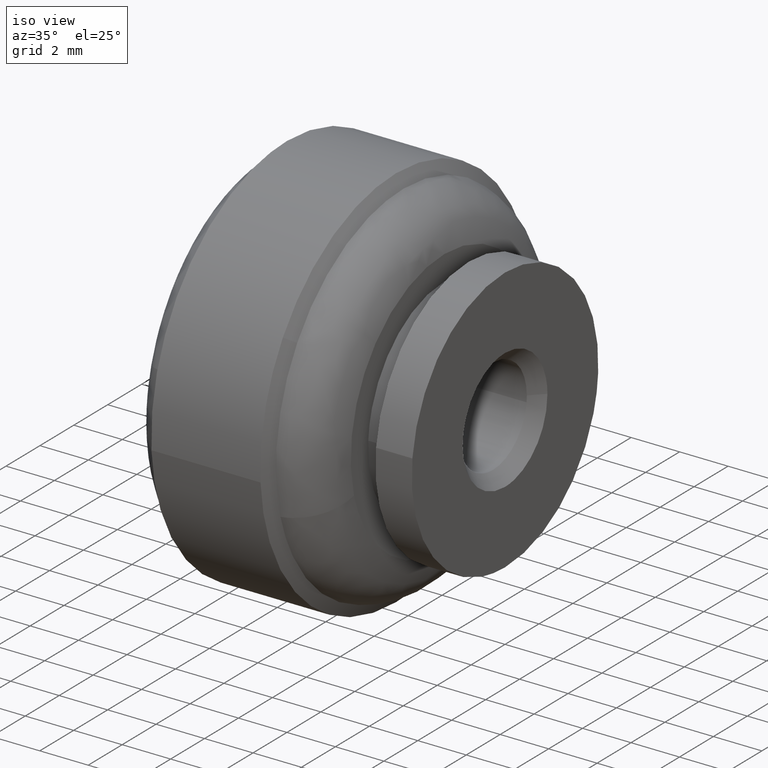
[diagram: clean part render]
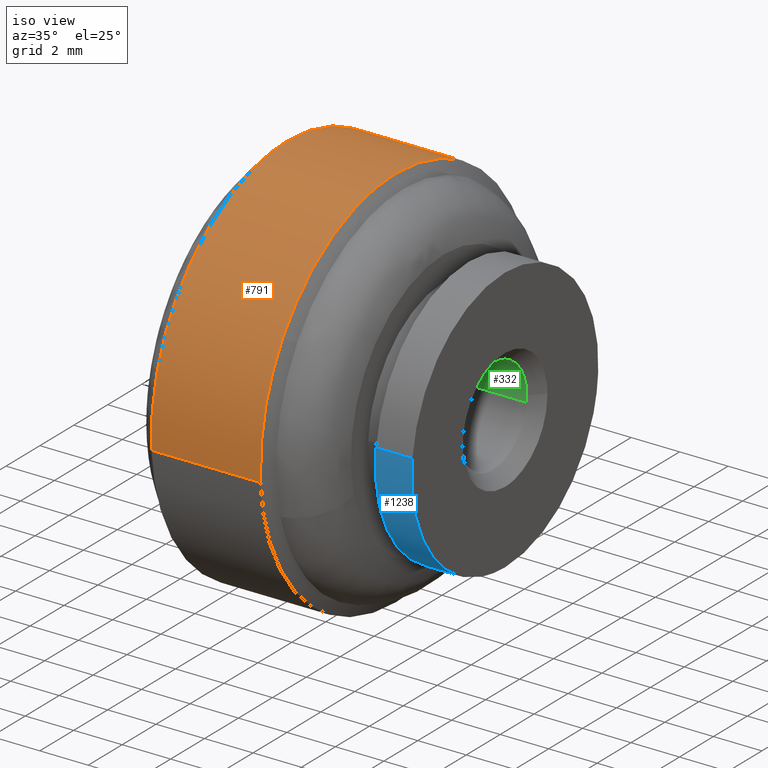
[diagram: same view with three faces highlighted in distinct colors, each labeled with its STEP entity id]
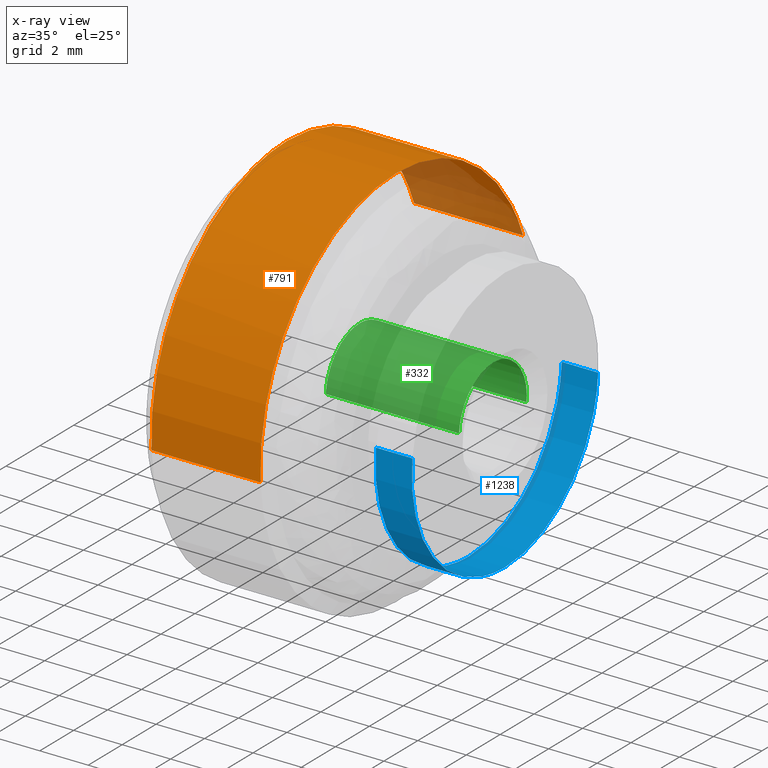
[diagram: x-ray of the same camera — body ghosted, the three highlighted faces saturated]
A machine part, iso view with three faces highlighted in distinct colors.
The next image is the same camera in x-ray (body ghosted, the three faces saturated) — at least one of them is partly hidden behind the body in this view.
Their STEP definitions:

[orange] entity #791 — the highlighted face is a freeform B-spline surface patch.
#490=CARTESIAN_POINT('',(-9.0,-7.985078764886214,-0.488382143945708));
#491=VERTEX_POINT('',#490);
#505=CARTESIAN_POINT('',(-9.0,0.0,8.0));
#506=VERTEX_POINT('',#505);
#507=CARTESIAN_POINT('',(-9.0,-7.985078764886214,-0.488382143945708));
#508=CARTESIAN_POINT('',(-8.999999999999998,-8.0,-0.244419011569009));
#509=CARTESIAN_POINT('',(-9.0,-8.0,0.0));
#510=CARTESIAN_POINT('',(-9.000000000000002,-8.0,8.0));
#511=CARTESIAN_POINT('',(-9.0,0.0,8.0));
#519=(BOUNDED_CURVE()B_SPLINE_CURVE(2,(#507,#508,#509,#510,#511),.UNSPECIFIED.,.F.,.U.)B_SPLINE_CURVE_WITH_KNOTS((3,2,3),(0.739333095617788,0.750000000000000,1.0),.UNSPECIFIED.)CURVE()GEOMETRIC_REPRESENTATION_ITEM()RATIONAL_B_SPLINE_CURVE((0.976072327523139,0.987502944162875,1.0,0.707106781186548,1.0))REPRESENTATION_ITEM(''));
#520=EDGE_CURVE('',#491,#506,#519,.T.);
#522=CARTESIAN_POINT('',(-9.0,7.489148825911312,2.812943274108259));
#523=VERTEX_POINT('',#522);
#524=CARTESIAN_POINT('',(-9.0,0.0,8.0));
#525=CARTESIAN_POINT('',(-9.000000000000004,5.540877589108404,8.0));
#526=CARTESIAN_POINT('',(-9.0,7.489148825911312,2.812943274108260));
#534=(BOUNDED_CURVE()B_SPLINE_CURVE(2,(#524,#525,#526),.UNSPECIFIED.,.F.,.U.)B_SPLINE_CURVE_WITH_KNOTS((3,3),(0.0,0.190284192876237),.UNSPECIFIED.)CURVE()GEOMETRIC_REPRESENTATION_ITEM()RATIONAL_B_SPLINE_CURVE((1.0,0.777068201036636,0.893499581530803))REPRESENTATION_ITEM(''));
#535=EDGE_CURVE('',#506,#523,#534,.T.);
#656=CARTESIAN_POINT('',(-4.499999999999999,7.489148828299452,2.812943267750101));
#657=VERTEX_POINT('',#656);
#690=CARTESIAN_POINT('',(-4.500000000000020,-7.985078769488446,-0.488382068697955));
#691=VERTEX_POINT('',#690);
#705=CARTESIAN_POINT('',(-4.500000000000020,-7.985078769488446,-0.488382068697955));
#706=CARTESIAN_POINT('',(-9.0,-7.985078764886214,-0.488382143945708));
#707=QUASI_UNIFORM_CURVE('',1,(#705,#706),.UNSPECIFIED.,.F.,.U.);
#708=EDGE_CURVE('',#691,#491,#707,.T.);
#714=CARTESIAN_POINT('',(-4.499999999999999,7.489148828299452,2.812943267750101));
#715=CARTESIAN_POINT('',(-9.0,7.489148825911312,2.812943274108259));
#716=QUASI_UNIFORM_CURVE('',1,(#714,#715),.UNSPECIFIED.,.F.,.U.);
#717=EDGE_CURVE('',#657,#523,#716,.T.);
#722=CARTESIAN_POINT('',(-4.387499999999999,-7.985078387374934,-0.488388316278856));
#723=CARTESIAN_POINT('',(-4.387499999999999,-8.473466703653790,7.496690071096078));
#724=CARTESIAN_POINT('',(-4.387499999999999,-0.488388316278856,7.985078387374934));
#725=CARTESIAN_POINT('',(-4.387499999999998,5.410956654424521,8.345897782954735));
#726=CARTESIAN_POINT('',(-4.387499999999999,7.489148630213257,2.812943795132577));
#727=CARTESIAN_POINT('',(-9.115312500000002,-7.985078387374934,-0.488388316278856));
#728=CARTESIAN_POINT('',(-9.115312500000002,-8.473466703653790,7.496690071096078));
#729=CARTESIAN_POINT('',(-9.115312500000002,-0.488388316278856,7.985078387374934));
#730=CARTESIAN_POINT('',(-9.115312500000002,5.410956654424521,8.345897782954735));
#731=CARTESIAN_POINT('',(-9.115312500000000,7.489148630213257,2.812943795132577));
#739=(BOUNDED_SURFACE()B_SPLINE_SURFACE(2,1,((#722,#727),(#723,#728),(#724,#729),(#725,#730),(#726,#731)),.UNSPECIFIED.,.F.,.F.,.U.)B_SPLINE_SURFACE_WITH_KNOTS((3,2,3),(2,2),(0.0,13.254833995939039,23.858701192690269),(0.0,4.727812500000003),.UNSPECIFIED.)GEOMETRIC_REPRESENTATION_ITEM()RATIONAL_B_SPLINE_SURFACE(((1.0,1.0),(0.707106781186548,0.707106781186548),(1.0,1.0),(0.765685424949238,0.765685424949238),(0.906274169979695,0.906274169979695)))REPRESENTATION_ITEM('')SURFACE());
#740=CARTESIAN_POINT('',(-4.500000000000000,0.0,8.0));
#741=VERTEX_POINT('',#740);
#742=CARTESIAN_POINT('',(-4.500000000000000,0.0,8.0));
#743=CARTESIAN_POINT('',(-4.500000000000000,5.540877599158381,8.0));
#744=CARTESIAN_POINT('',(-4.500000000000000,7.489148828299452,2.812943267750101));
#752=(BOUNDED_CURVE()B_SPLINE_CURVE(2,(#742,#743,#744),.UNSPECIFIED.,.F.,.U.)B_SPLINE_CURVE_WITH_KNOTS((3,3),(0.0,0.190284193144431),.UNSPECIFIED.)CURVE()GEOMETRIC_REPRESENTATION_ITEM()RATIONAL_B_SPLINE_CURVE((1.0,0.777068200722428,0.893499581859008))REPRESENTATION_ITEM(''));
#753=EDGE_CURVE('',#741,#657,#752,.T.);
#754=ORIENTED_EDGE('',*,*,#753,.T.);
#755=ORIENTED_EDGE('',*,*,#717,.T.);
#756=ORIENTED_EDGE('',*,*,#535,.F.);
#757=ORIENTED_EDGE('',*,*,#520,.F.);
#758=ORIENTED_EDGE('',*,*,#708,.F.);
#759=CARTESIAN_POINT('',(-4.500000000000110,-6.671086576535206,4.415495882500080));
#760=VERTEX_POINT('',#759);
#761=CARTESIAN_POINT('',(-4.500000000000020,-7.985078769488446,-0.488382068697955));
#762=CARTESIAN_POINT('',(-4.500000000000000,-8.0,-0.244418973839644));
#763=CARTESIAN_POINT('',(-4.500000000000000,-8.0,0.0));
#764=CARTESIAN_POINT('',(-4.500000000000000,-8.0,2.407726713066384));
#765=CARTESIAN_POINT('',(-4.500000000000109,-6.671086576535206,4.415495882500080));
#773=(BOUNDED_CURVE()B_SPLINE_CURVE(2,(#761,#762,#763,#764,#765),.UNSPECIFIED.,.F.,.U.)B_SPLINE_CURVE_WITH_KNOTS((3,2,3),(0.739333097243791,0.750000000000000,0.844612684636033),.UNSPECIFIED.)CURVE()GEOMETRIC_REPRESENTATION_ITEM()RATIONAL_B_SPLINE_CURVE((0.976072331007977,0.987502946067855,1.0,0.889154345025481,0.862207930029992))REPRESENTATION_ITEM(''));
#774=EDGE_CURVE('',#691,#760,#773,.T.);
#775=ORIENTED_EDGE('',*,*,#774,.T.);
#776=CARTESIAN_POINT('',(-4.500000000000111,-6.671086576535206,4.415495882500079));
#777=CARTESIAN_POINT('',(-4.500000000000000,-4.298555057109845,8.000000000000002));
#778=CARTESIAN_POINT('',(-4.500000000000000,0.0,8.0));
#786=(BOUNDED_CURVE()B_SPLINE_CURVE(2,(#776,#777,#778),.UNSPECIFIED.,.F.,.U.)B_SPLINE_CURVE_WITH_KNOTS((3,3),(0.844612684636033,1.0),.UNSPECIFIED.)CURVE()GEOMETRIC_REPRESENTATION_ITEM()RATIONAL_B_SPLINE_CURVE((0.862207930029991,0.817952436161067,1.0))REPRESENTATION_ITEM(''));
#787=EDGE_CURVE('',#760,#741,#786,.T.);
#788=ORIENTED_EDGE('',*,*,#787,.T.);
#789=EDGE_LOOP('',(#754,#755,#756,#757,#758,#775,#788));
#790=FACE_OUTER_BOUND('',#789,.T.);
#791=ADVANCED_FACE('',(#790),#739,.T.);

[blue] entity #1238 — the highlighted face is a freeform B-spline surface patch.
#1136=CARTESIAN_POINT('',(-1.537499999999946,-5.461552395000165,0.649188290612172));
#1137=CARTESIAN_POINT('',(-1.537499999999945,-5.480131884967332,0.492881007508877));
#1138=CARTESIAN_POINT('',(-1.537499999999945,-5.489741391320267,0.335766967441713));
#1139=CARTESIAN_POINT('',(-1.537499999999945,-5.825508358761980,-5.153974423878553));
#1140=CARTESIAN_POINT('',(-1.537499999999945,-0.335766967441713,-5.489741391320267));
#1141=CARTESIAN_POINT('',(-1.537499999999945,5.153974423878553,-5.825508358761980));
#1142=CARTESIAN_POINT('',(-1.537499999999945,5.489741391320267,-0.335766967441713));
#1143=CARTESIAN_POINT('',(0.038437499999999,-5.461552395000165,0.649188290612172));
#1144=CARTESIAN_POINT('',(0.038437499999999,-5.480131884967332,0.492881007508877));
#1145=CARTESIAN_POINT('',(0.038437499999999,-5.489741391320267,0.335766967441713));
#1146=CARTESIAN_POINT('',(0.038437499999999,-5.825508358761980,-5.153974423878553));
#1147=CARTESIAN_POINT('',(0.038437499999999,-0.335766967441713,-5.489741391320267));
#1148=CARTESIAN_POINT('',(0.038437499999999,5.153974423878553,-5.825508358761980));
#1149=CARTESIAN_POINT('',(0.038437499999999,5.489741391320267,-0.335766967441713));
#1157=(BOUNDED_SURFACE()B_SPLINE_SURFACE(2,1,((#1136,#1143),(#1137,#1144),(#1138,#1145),(#1139,#1146),(#1140,#1147),(#1141,#1148),(#1142,#1149)),.UNSPECIFIED.,.F.,.F.,.U.)B_SPLINE_SURFACE_WITH_KNOTS((3,2,2,3),(2,2),(0.0,0.364507934888324,9.477206307096417,18.589904679304510),(0.0,1.0),.UNSPECIFIED.)GEOMETRIC_REPRESENTATION_ITEM()RATIONAL_B_SPLINE_SURFACE(((0.977505800795127,0.977505800795127),(0.988284271247462,0.988284271247462),(1.0,1.0),(0.707106781186548,0.707106781186548),(1.0,1.0),(0.707106781186548,0.707106781186548),(1.0,1.0)))REPRESENTATION_ITEM('')SURFACE());
#1158=CARTESIAN_POINT('',(2.515024E-014,-5.461553148710233,0.649181949666312));
#1159=VERTEX_POINT('',#1158);
#1160=CARTESIAN_POINT('',(0.0,0.0,-5.500000000000000));
#1161=VERTEX_POINT('',#1160);
#1162=CARTESIAN_POINT('',(2.515024E-014,-5.461553148710233,0.649181949666312));
#1163=CARTESIAN_POINT('',(0.0,-5.500000000000000,0.325729454095293));
#1164=CARTESIAN_POINT('',(0.0,-5.500000000000000,0.0));
#1165=CARTESIAN_POINT('',(0.0,-5.500000000000001,-5.500000000000001));
#1166=CARTESIAN_POINT('',(0.0,0.0,-5.500000000000000));
#1174=(BOUNDED_CURVE()B_SPLINE_CURVE(2,(#1162,#1163,#1164,#1165,#1166),.UNSPECIFIED.,.F.,.U.)B_SPLINE_CURVE_WITH_KNOTS((3,2,3),(0.229562669731015,0.250000000000000,0.500000000000000),.UNSPECIFIED.)CURVE()GEOMETRIC_REPRESENTATION_ITEM()RATIONAL_B_SPLINE_CURVE((0.956027138778403,0.976056178214253,1.0,0.707106781186548,1.0))REPRESENTATION_ITEM(''));
#1175=EDGE_CURVE('',#1159,#1161,#1174,.T.);
#1176=ORIENTED_EDGE('',*,*,#1175,.F.);
#1177=CARTESIAN_POINT('',(-1.499999999999946,-5.461553139409760,0.649182027911757));
#1178=VERTEX_POINT('',#1177);
#1179=CARTESIAN_POINT('',(-1.499999999999946,-5.461553139409760,0.649182027911757));
#1180=CARTESIAN_POINT('',(2.515024E-014,-5.461553148710233,0.649181949666312));
#1181=QUASI_UNIFORM_CURVE('',1,(#1179,#1180),.UNSPECIFIED.,.F.,.U.);
#1182=EDGE_CURVE('',#1178,#1159,#1181,.T.);
#1183=ORIENTED_EDGE('',*,*,#1182,.F.);
#1184=CARTESIAN_POINT('',(-1.499999999999946,0.0,-5.500000000000000));
#1185=VERTEX_POINT('',#1184);
#1186=CARTESIAN_POINT('',(-1.499999999999947,-5.461553139409760,0.649182027911757));
#1187=CARTESIAN_POINT('',(-1.499999999999946,-5.500000000000002,0.325729493631602));
#1188=CARTESIAN_POINT('',(-1.499999999999946,-5.500000000000000,0.0));
#1189=CARTESIAN_POINT('',(-1.499999999999946,-5.500000000000001,-5.500000000000001));
#1190=CARTESIAN_POINT('',(-1.499999999999946,0.0,-5.500000000000000));
#1198=(BOUNDED_CURVE()B_SPLINE_CURVE(2,(#1186,#1187,#1188,#1189,#1190),.UNSPECIFIED.,.F.,.U.)B_SPLINE_CURVE_WITH_KNOTS((3,2,3),(0.229562667309774,0.250000000000000,0.500000000000000),.UNSPECIFIED.)CURVE()GEOMETRIC_REPRESENTATION_ITEM()RATIONAL_B_SPLINE_CURVE((0.956027134032662,0.976056175377593,1.0,0.707106781186548,1.0))REPRESENTATION_ITEM(''));
#1199=EDGE_CURVE('',#1178,#1185,#1198,.T.);
#1200=ORIENTED_EDGE('',*,*,#1199,.T.);
#1201=CARTESIAN_POINT('',(-1.499999999999946,5.489741768496189,-0.335760800556230));
#1202=VERTEX_POINT('',#1201);
#1203=CARTESIAN_POINT('',(-1.499999999999946,0.0,-5.500000000000000));
#1204=CARTESIAN_POINT('',(-1.499999999999947,5.173889190912197,-5.499999999999999));
#1205=CARTESIAN_POINT('',(-1.499999999999946,5.489741768496189,-0.335760800556230));
#1213=(BOUNDED_CURVE()B_SPLINE_CURVE(2,(#1203,#1204,#1205),.UNSPECIFIED.,.F.,.U.)B_SPLINE_CURVE_WITH_KNOTS((3,3),(0.500000000000000,0.739333156071945),.UNSPECIFIED.)CURVE()GEOMETRIC_REPRESENTATION_ITEM()RATIONAL_B_SPLINE_CURVE((1.0,0.719603766197222,0.976072457088091))REPRESENTATION_ITEM(''));
#1214=EDGE_CURVE('',#1185,#1202,#1213,.T.);
#1215=ORIENTED_EDGE('',*,*,#1214,.T.);
#1216=CARTESIAN_POINT('',(6.364353E-014,5.489741773209675,-0.335760723488546));
#1217=VERTEX_POINT('',#1216);
#1218=CARTESIAN_POINT('',(-1.499999999999946,5.489741768496189,-0.335760800556230));
#1219=CARTESIAN_POINT('',(6.364353E-014,5.489741773209675,-0.335760723488546));
#1220=QUASI_UNIFORM_CURVE('',1,(#1218,#1219),.UNSPECIFIED.,.F.,.U.);
#1221=EDGE_CURVE('',#1202,#1217,#1220,.T.);
#1222=ORIENTED_EDGE('',*,*,#1221,.T.);
#1223=CARTESIAN_POINT('',(0.0,0.0,-5.500000000000000));
#1224=CARTESIAN_POINT('',(0.0,5.173889263681510,-5.500000000000001));
#1225=CARTESIAN_POINT('',(6.364353E-014,5.489741773209675,-0.335760723488546));
#1233=(BOUNDED_CURVE()B_SPLINE_CURVE(2,(#1223,#1224,#1225),.UNSPECIFIED.,.F.,.U.)B_SPLINE_CURVE_WITH_KNOTS((3,3),(0.500000000000000,0.739333158494242),.UNSPECIFIED.)CURVE()GEOMETRIC_REPRESENTATION_ITEM()RATIONAL_B_SPLINE_CURVE((1.0,0.719603763359325,0.976072462279544))REPRESENTATION_ITEM(''));
#1234=EDGE_CURVE('',#1161,#1217,#1233,.T.);
#1235=ORIENTED_EDGE('',*,*,#1234,.F.);
#1236=EDGE_LOOP('',(#1176,#1183,#1200,#1215,#1222,#1235));
#1237=FACE_OUTER_BOUND('',#1236,.T.);
#1238=ADVANCED_FACE('',(#1237),#1157,.T.);

[green] entity #332 — the highlighted face is a freeform B-spline surface patch.
#70=CARTESIAN_POINT('',(-0.499999999998232,0.451216090230096,1.948436306355514));
#71=VERTEX_POINT('',#70);
#72=CARTESIAN_POINT('',(-0.499999999999945,0.0,2.0));
#73=VERTEX_POINT('',#72);
#74=CARTESIAN_POINT('',(-0.499999999998232,0.451216090230096,1.948436306355514));
#75=CARTESIAN_POINT('',(-0.499999999999945,0.228554321374467,2.000000000000000));
#76=CARTESIAN_POINT('',(-0.499999999999945,0.0,2.0));
#84=(BOUNDED_CURVE()B_SPLINE_CURVE(2,(#74,#75,#76),.UNSPECIFIED.,.F.,.U.)B_SPLINE_CURVE_WITH_KNOTS((3,3),(0.461422971782193,0.500000000000000),.UNSPECIFIED.)CURVE()GEOMETRIC_REPRESENTATION_ITEM()RATIONAL_B_SPLINE_CURVE((0.923556557438871,0.954804200132117,1.0))REPRESENTATION_ITEM(''));
#85=EDGE_CURVE('',#71,#73,#84,.T.);
#143=CARTESIAN_POINT('',(-0.499999999984389,1.999923846142903,0.017453071110843));
#144=VERTEX_POINT('',#143);
#150=CARTESIAN_POINT('',(-0.499999999999945,1.986019320010124,-0.236066220669957));
#151=VERTEX_POINT('',#150);
#152=CARTESIAN_POINT('',(-0.499999999999945,1.986019320010124,-0.236066220669957));
#153=CARTESIAN_POINT('',(-0.499999999999945,2.0,-0.118447103096045));
#154=CARTESIAN_POINT('',(-0.499999999999945,2.0,0.0));
#155=CARTESIAN_POINT('',(-0.499999999999945,2.000000000000000,0.008726701755369));
#156=CARTESIAN_POINT('',(-0.499999999984389,1.999923846142903,0.017453071110843));
#164=(BOUNDED_CURVE()B_SPLINE_CURVE(2,(#152,#153,#154,#155,#156),.UNSPECIFIED.,.F.,.U.)B_SPLINE_CURVE_WITH_KNOTS((3,2,3),(0.229562664867330,0.250000000000000,0.251539894355061),.UNSPECIFIED.)CURVE()GEOMETRIC_REPRESENTATION_ITEM()RATIONAL_B_SPLINE_CURVE((0.956027129245364,0.976056172516092,1.0,0.998195901542854,0.996414028053949))REPRESENTATION_ITEM(''));
#165=EDGE_CURVE('',#151,#144,#164,.T.);
#182=CARTESIAN_POINT('',(-0.499999999999945,-1.996269596843233,0.122097079077906));
#183=VERTEX_POINT('',#182);
#199=CARTESIAN_POINT('',(-0.499999999999945,0.0,2.0));
#200=CARTESIAN_POINT('',(-0.499999999999945,-1.881412133795925,2.000000000000000));
#201=CARTESIAN_POINT('',(-0.499999999999945,-1.996269596843233,0.122097079077906));
#209=(BOUNDED_CURVE()B_SPLINE_CURVE(2,(#199,#200,#201),.UNSPECIFIED.,.F.,.U.)B_SPLINE_CURVE_WITH_KNOTS((3,3),(0.500000000000000,0.739332962240553),.UNSPECIFIED.)CURVE()GEOMETRIC_REPRESENTATION_ITEM()RATIONAL_B_SPLINE_CURVE((1.0,0.719603993284824,0.976072041670168))REPRESENTATION_ITEM(''));
#210=EDGE_CURVE('',#73,#183,#209,.T.);
#229=CARTESIAN_POINT('',(-0.499999999984389,1.999923846142903,0.017453071110843));
#230=CARTESIAN_POINT('',(-0.499999999999945,1.986174493249262,1.592972836985882));
#231=CARTESIAN_POINT('',(-0.499999999998232,0.451216090230096,1.948436306355514));
#239=(BOUNDED_CURVE()B_SPLINE_CURVE(2,(#229,#230,#231),.UNSPECIFIED.,.F.,.U.)B_SPLINE_CURVE_WITH_KNOTS((3,3),(0.251539894355061,0.461422971782193),.UNSPECIFIED.)CURVE()GEOMETRIC_REPRESENTATION_ITEM()RATIONAL_B_SPLINE_CURVE((0.996414028053949,0.753549905454865,0.923556557438871))REPRESENTATION_ITEM(''));
#240=EDGE_CURVE('',#144,#71,#239,.T.);
#260=CARTESIAN_POINT('',(-6.137500000000004,1.986019052727332,-0.236068469313517));
#261=CARTESIAN_POINT('',(-6.137500000000003,1.992775230897211,-0.179229457275955));
#262=CARTESIAN_POINT('',(-6.137500000000003,1.996269596843733,-0.122097079069714));
#263=CARTESIAN_POINT('',(-6.137500000000003,2.118366675913447,1.874172517774020));
#264=CARTESIAN_POINT('',(-6.137500000000003,0.122097079069714,1.996269596843733));
#265=CARTESIAN_POINT('',(-6.137500000000003,-1.874172517774020,2.118366675913447));
#266=CARTESIAN_POINT('',(-6.137500000000003,-1.996269596843733,0.122097079069714));
#267=CARTESIAN_POINT('',(-0.359062499999943,1.986019052727332,-0.236068469313517));
#268=CARTESIAN_POINT('',(-0.359062499999943,1.992775230897211,-0.179229457275955));
#269=CARTESIAN_POINT('',(-0.359062499999943,1.996269596843733,-0.122097079069714));
#270=CARTESIAN_POINT('',(-0.359062499999943,2.118366675913447,1.874172517774020));
#271=CARTESIAN_POINT('',(-0.359062499999943,0.122097079069714,1.996269596843733));
#272=CARTESIAN_POINT('',(-0.359062499999943,-1.874172517774020,2.118366675913447));
#273=CARTESIAN_POINT('',(-0.359062499999943,-1.996269596843733,0.122097079069714));
#281=(BOUNDED_SURFACE()B_SPLINE_SURFACE(2,1,((#260,#267),(#261,#268),(#262,#269),(#263,#270),(#264,#271),(#265,#272),(#266,#273)),.UNSPECIFIED.,.F.,.F.,.U.)B_SPLINE_SURFACE_WITH_KNOTS((3,2,2,3),(2,2),(0.0,0.132548339959391,3.446256838944149,6.759965337928908),(0.0,5.778437500000059),.UNSPECIFIED.)GEOMETRIC_REPRESENTATION_ITEM()RATIONAL_B_SPLINE_SURFACE(((0.977505800795127,0.977505800795127),(0.988284271247462,0.988284271247462),(1.0,1.0),(0.707106781186548,0.707106781186548),(1.0,1.0),(0.707106781186548,0.707106781186548),(1.0,1.0)))REPRESENTATION_ITEM('')SURFACE());
#282=CARTESIAN_POINT('',(-6.000000000000012,1.986019323275202,-0.236066193200663));
#283=VERTEX_POINT('',#282);
#284=CARTESIAN_POINT('',(-6.0,0.0,2.0));
#285=VERTEX_POINT('',#284);
#286=CARTESIAN_POINT('',(-6.000000000000012,1.986019323275202,-0.236066193200663));
#287=CARTESIAN_POINT('',(-6.0,2.0,-0.118447089216202));
#288=CARTESIAN_POINT('',(-6.0,2.0,0.0));
#289=CARTESIAN_POINT('',(-6.0,2.000000000000000,2.000000000000000));
#290=CARTESIAN_POINT('',(-6.0,0.0,2.0));
#298=(BOUNDED_CURVE()B_SPLINE_CURVE(2,(#286,#287,#288,#289,#290),.UNSPECIFIED.,.F.,.U.)B_SPLINE_CURVE_WITH_KNOTS((3,2,3),(0.729562667204871,0.750000000000000,1.0),.UNSPECIFIED.)CURVE()GEOMETRIC_REPRESENTATION_ITEM()RATIONAL_B_SPLINE_CURVE((0.956027133827048,0.976056175254691,1.0,0.707106781186548,1.0))REPRESENTATION_ITEM(''));
#299=EDGE_CURVE('',#283,#285,#298,.T.);
#300=ORIENTED_EDGE('',*,*,#299,.F.);
#301=CARTESIAN_POINT('',(-6.000000000000012,1.986019323275202,-0.236066193200663));
#302=CARTESIAN_POINT('',(-0.499999999999945,1.986019320010124,-0.236066220669957));
#303=QUASI_UNIFORM_CURVE('',1,(#301,#302),.UNSPECIFIED.,.F.,.U.);
#304=EDGE_CURVE('',#283,#151,#303,.T.);
#305=ORIENTED_EDGE('',*,*,#304,.T.);
#306=ORIENTED_EDGE('',*,*,#165,.T.);
#307=ORIENTED_EDGE('',*,*,#240,.T.);
#308=ORIENTED_EDGE('',*,*,#85,.T.);
#309=ORIENTED_EDGE('',*,*,#210,.T.);
#310=CARTESIAN_POINT('',(-6.0,-1.996269596843233,0.122097079077905));
#311=VERTEX_POINT('',#310);
#312=CARTESIAN_POINT('',(-6.0,-1.996269596843233,0.122097079077905));
#313=CARTESIAN_POINT('',(-0.499999999999945,-1.996269596843233,0.122097079077906));
#314=QUASI_UNIFORM_CURVE('',1,(#312,#313),.UNSPECIFIED.,.F.,.U.);
#315=EDGE_CURVE('',#311,#183,#314,.T.);
#316=ORIENTED_EDGE('',*,*,#315,.F.);
#317=CARTESIAN_POINT('',(-6.0,0.0,2.0));
#318=CARTESIAN_POINT('',(-6.0,-1.881412133795921,1.999999999999999));
#319=CARTESIAN_POINT('',(-5.999999999999999,-1.996269596843233,0.122097079077905));
#327=(BOUNDED_CURVE()B_SPLINE_CURVE(2,(#317,#318,#319),.UNSPECIFIED.,.F.,.U.)B_SPLINE_CURVE_WITH_KNOTS((3,3),(0.0,0.239332962240552),.UNSPECIFIED.)CURVE()GEOMETRIC_REPRESENTATION_ITEM()RATIONAL_B_SPLINE_CURVE((1.0,0.719603993284825,0.976072041670167))REPRESENTATION_ITEM(''));
#328=EDGE_CURVE('',#285,#311,#327,.T.);
#329=ORIENTED_EDGE('',*,*,#328,.F.);
#330=EDGE_LOOP('',(#300,#305,#306,#307,#308,#309,#316,#329));
#331=FACE_OUTER_BOUND('',#330,.T.);
#332=ADVANCED_FACE('',(#331),#281,.F.);